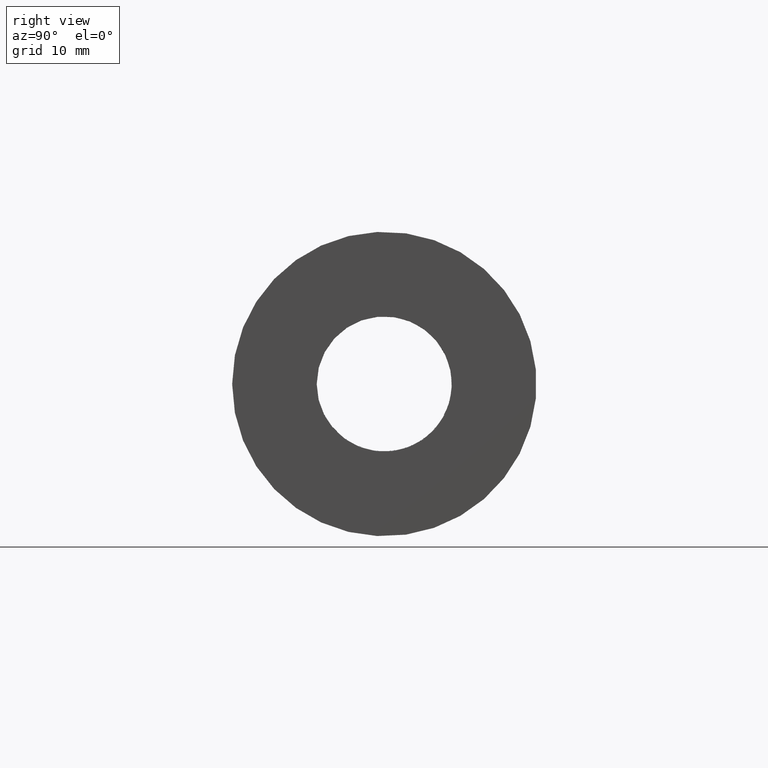
[diagram: clean part render]
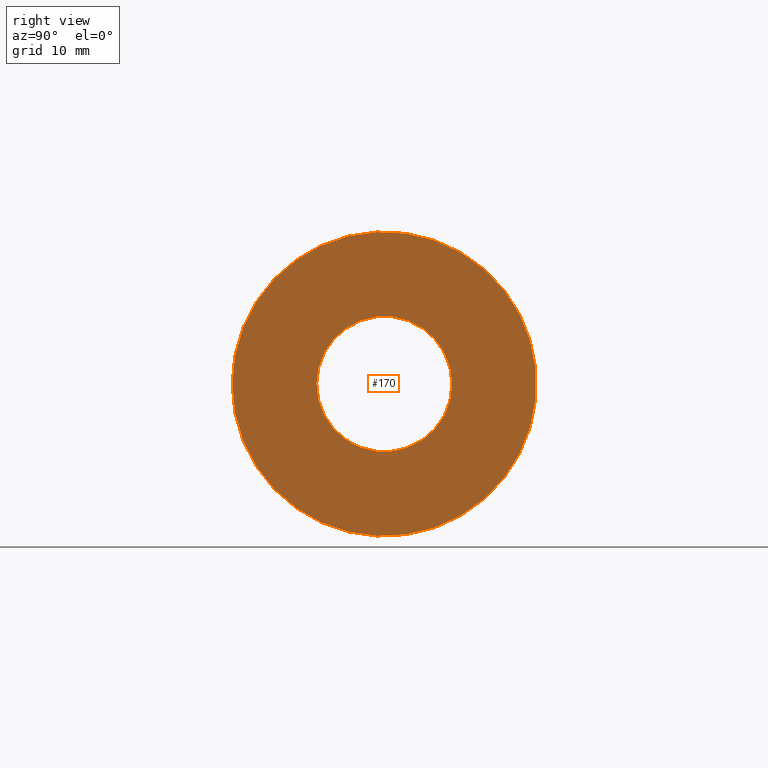
[diagram: same view with one face highlighted and labeled with its STEP entity id]
A machine part, right view. The second image highlights one B-rep face of the part: STEP entity #170.
In plain terms, the highlighted planar face has unit normal (1, 0, 0).
Its self-contained STEP definition (entity closure, byte-faithful):
#16=FACE_BOUND('',#49,.T.);
#20=PLANE('',#214);
#35=FACE_OUTER_BOUND('',#48,.T.);
#48=EDGE_LOOP('',(#143));
#49=EDGE_LOOP('',(#144));
#81=CIRCLE('',#213,13.5);
#82=CIRCLE('',#215,6.00000000000002);
#94=VERTEX_POINT('',#311);
#95=VERTEX_POINT('',#315);
#111=EDGE_CURVE('',#94,#94,#81,.T.);
#113=EDGE_CURVE('',#95,#95,#82,.T.);
#143=ORIENTED_EDGE('',*,*,#111,.T.);
#144=ORIENTED_EDGE('',*,*,#113,.F.);
#170=ADVANCED_FACE('',(#35,#16),#20,.T.);
#213=AXIS2_PLACEMENT_3D('',#312,#258,#259);
#214=AXIS2_PLACEMENT_3D('',#314,#261,#262);
#215=AXIS2_PLACEMENT_3D('',#316,#263,#264);
#258=DIRECTION('center_axis',(1.,0.,0.));
#259=DIRECTION('ref_axis',(0.,0.,-1.));
#261=DIRECTION('center_axis',(1.,0.,0.));
#262=DIRECTION('ref_axis',(0.,0.,-1.));
#263=DIRECTION('center_axis',(1.,0.,0.));
#264=DIRECTION('ref_axis',(0.,0.,-1.));
#311=CARTESIAN_POINT('',(-2.22044604925031E-15,-13.5,-1.65327317884893E-15));
#312=CARTESIAN_POINT('Origin',(-2.22044604925031E-15,0.,0.));
#314=CARTESIAN_POINT('Origin',(0.,6.00000000000002,0.));
#315=CARTESIAN_POINT('',(0.,-6.,-7.34788079488412E-16));
#316=CARTESIAN_POINT('Origin',(0.,0.,0.));